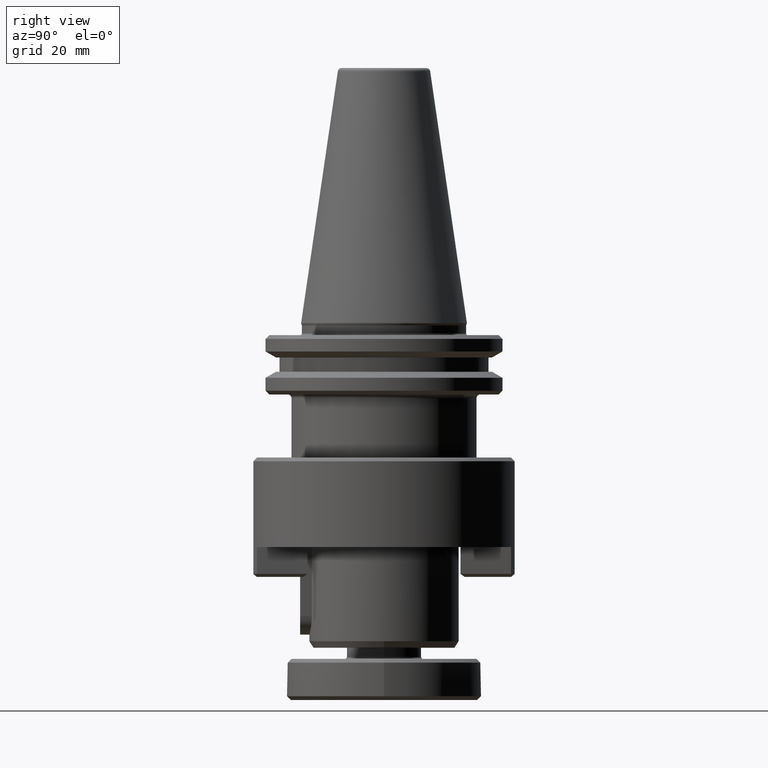
[diagram: clean part render]
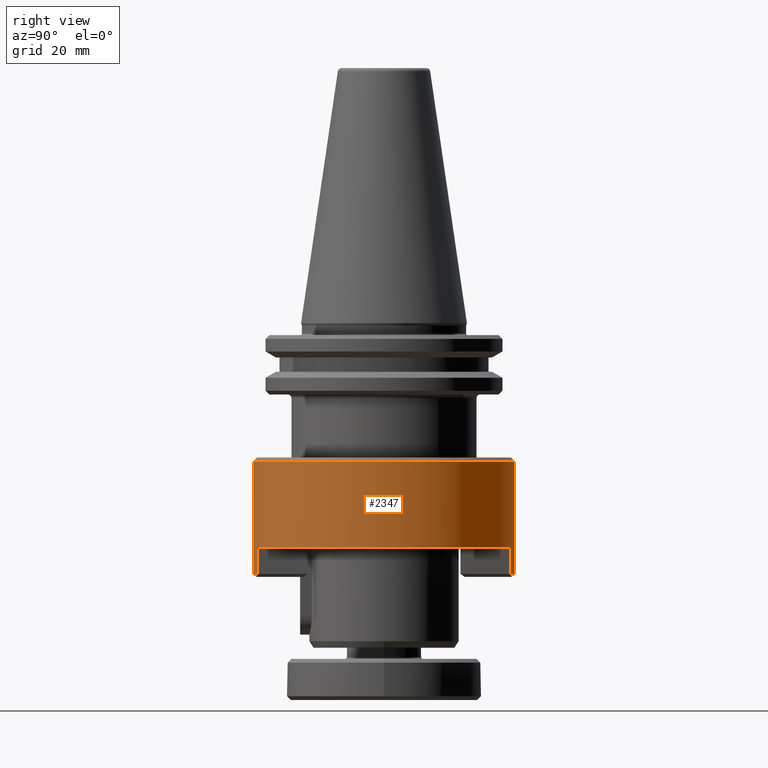
[diagram: same view with one face highlighted and labeled with its STEP entity id]
A machine part, right view. The second image highlights one B-rep face of the part: STEP entity #2347.
In plain terms, the highlighted cylindrical surface (partial cylindrical patch) has radius 35 mm, axis along (0, 0, 1).
Its self-contained STEP definition (entity closure, byte-faithful):
#25 = DIRECTION ( 'NONE',  ( 0.0000000000000000000, 2.478176394252581700E-017, 1.000000000000000000 ) ) ;
#48 = VERTEX_POINT ( 'NONE', #949 ) ;
#84 = VERTEX_POINT ( 'NONE', #2043 ) ;
#95 = CARTESIAN_POINT ( 'NONE',  ( 0.0000000000000000000, 35.00000000000000000, -67.20000000000000300 ) ) ;
#115 = AXIS2_PLACEMENT_3D ( 'NONE', #1092, #1090, #1087 ) ;
#160 = AXIS2_PLACEMENT_3D ( 'NONE', #1281, #1267, #1265 ) ;
#186 = CIRCLE ( 'NONE', #160, 35.00000000000000000 ) ;
#215 = AXIS2_PLACEMENT_3D ( 'NONE', #1754, #1706, #1704 ) ;
#240 = CIRCLE ( 'NONE', #923, 35.00000000000000000 ) ;
#283 = CIRCLE ( 'NONE', #115, 35.00000000000000000 ) ;
#345 = DIRECTION ( 'NONE',  ( 0.0000000000000000000, -1.000000000000000000, 0.0000000000000000000 ) ) ;
#349 = CYLINDRICAL_SURFACE ( 'NONE', #215, 35.00000000000000000 ) ;
#439 = FACE_OUTER_BOUND ( 'NONE', #1709, .T. ) ;
#452 = VERTEX_POINT ( 'NONE', #1631 ) ;
#462 = DIRECTION ( 'NONE',  ( -0.0000000000000000000, 6.500853926474174700E-029, 1.000000000000000000 ) ) ;
#472 = CARTESIAN_POINT ( 'NONE',  ( 0.0000000000000000000, -6.913615421504630400E-027, -36.99999999998274100 ) ) ;
#505 = EDGE_CURVE ( 'NONE', #452, #2433, #865, .T. ) ;
#590 = VECTOR ( 'NONE', #2186, 1000.000000000000000 ) ;
#591 = LINE ( 'NONE', #2182, #590 ) ;
#684 = VECTOR ( 'NONE', #2268, 1000.000000000000000 ) ;
#690 = LINE ( 'NONE', #2261, #684 ) ;
#710 = DIRECTION ( 'NONE',  ( 0.0000000000000000000, 1.000000000000000000, 0.0000000000000000000 ) ) ;
#720 = DIRECTION ( 'NONE',  ( 0.0000000000000000000, 2.478176394252581700E-017, 1.000000000000000000 ) ) ;
#864 = ORIENTED_EDGE ( 'NONE', *, *, #1612, .F. ) ;
#865 = CIRCLE ( 'NONE', #1139, 35.00000000000000000 ) ;
#923 = AXIS2_PLACEMENT_3D ( 'NONE', #472, #462, #345 ) ;
#949 = CARTESIAN_POINT ( 'NONE',  ( 4.286263797015736500E-015, -35.00000000000000000, -36.99999999998274100 ) ) ;
#962 = ORIENTED_EDGE ( 'NONE', *, *, #505, .T. ) ;
#1081 = ORIENTED_EDGE ( 'NONE', *, *, #2552, .T. ) ;
#1087 = DIRECTION ( 'NONE',  ( 0.0000000000000000000, 1.000000000000000000, 0.0000000000000000000 ) ) ;
#1090 = DIRECTION ( 'NONE',  ( 0.0000000000000000000, 2.478176394252581700E-017, 1.000000000000000000 ) ) ;
#1092 = CARTESIAN_POINT ( 'NONE',  ( 0.0000000000000000000, 1.784287004704438200E-016, -59.99999999660000300 ) ) ;
#1097 = EDGE_CURVE ( 'NONE', #48, #84, #240, .T. ) ;
#1130 = ORIENTED_EDGE ( 'NONE', *, *, #2072, .T. ) ;
#1139 = AXIS2_PLACEMENT_3D ( 'NONE', #2135, #720, #710 ) ;
#1183 = ORIENTED_EDGE ( 'NONE', *, *, #1599, .T. ) ;
#1265 = DIRECTION ( 'NONE',  ( 0.0000000000000000000, 1.000000000000000000, 0.0000000000000000000 ) ) ;
#1267 = DIRECTION ( 'NONE',  ( 0.0000000000000000000, 2.478176394252581700E-017, 1.000000000000000000 ) ) ;
#1281 = CARTESIAN_POINT ( 'NONE',  ( 0.0000000000000000000, 2.149475384360753800E-032, -67.20000000000000300 ) ) ;
#1321 = VERTEX_POINT ( 'NONE', #2307 ) ;
#1448 = CARTESIAN_POINT ( 'NONE',  ( 0.0000000000000000000, 35.00000000000000000, -67.20000000090742300 ) ) ;
#1574 = ORIENTED_EDGE ( 'NONE', *, *, #1097, .F. ) ;
#1599 = EDGE_CURVE ( 'NONE', #2433, #84, #1856, .T. ) ;
#1612 = EDGE_CURVE ( 'NONE', #1877, #48, #1816, .T. ) ;
#1630 = ORIENTED_EDGE ( 'NONE', *, *, #2487, .T. ) ;
#1631 = CARTESIAN_POINT ( 'NONE',  ( 8.000000000403185000, 34.07345007469356100, -67.20000000046677300 ) ) ;
#1636 = ORIENTED_EDGE ( 'NONE', *, *, #2002, .T. ) ;
#1704 = DIRECTION ( 'NONE',  ( 0.0000000000000000000, 1.000000000000000000, 0.0000000000000000000 ) ) ;
#1706 = DIRECTION ( 'NONE',  ( 0.0000000000000000000, 2.478176394252581700E-017, 1.000000000000000000 ) ) ;
#1709 = EDGE_LOOP ( 'NONE', ( #864, #1630, #1636, #1081, #1130, #962, #1183, #1574 ) ) ;
#1754 = CARTESIAN_POINT ( 'NONE',  ( 0.0000000000000000000, 0.0000000000000000000, -67.20000000000000300 ) ) ;
#1774 = VERTEX_POINT ( 'NONE', #1880 ) ;
#1816 = LINE ( 'NONE', #2516, #2021 ) ;
#1820 = VECTOR ( 'NONE', #25, 1000.000000000000000 ) ;
#1856 = LINE ( 'NONE', #95, #1820 ) ;
#1877 = VERTEX_POINT ( 'NONE', #2499 ) ;
#1880 = CARTESIAN_POINT ( 'NONE',  ( 7.999999999500417400, -34.07345007447597100, -67.20000000043123100 ) ) ;
#2002 = EDGE_CURVE ( 'NONE', #1774, #2128, #690, .T. ) ;
#2021 = VECTOR ( 'NONE', #2508, 1000.000000000000000 ) ;
#2043 = CARTESIAN_POINT ( 'NONE',  ( 0.0000000000000000000, 35.00000000000000000, -36.99999999998274100 ) ) ;
#2072 = EDGE_CURVE ( 'NONE', #1321, #452, #591, .T. ) ;
#2103 = CARTESIAN_POINT ( 'NONE',  ( 7.999999999232652000, -34.07345007499994700, -59.99999999829999800 ) ) ;
#2128 = VERTEX_POINT ( 'NONE', #2103 ) ;
#2135 = CARTESIAN_POINT ( 'NONE',  ( 0.0000000000000000000, -2.248761858742512300E-026, -67.20000000090742300 ) ) ;
#2182 = CARTESIAN_POINT ( 'NONE',  ( 8.000000000883588300, 34.07345007459419200, -67.20000000000000300 ) ) ;
#2186 = DIRECTION ( 'NONE',  ( -0.0000000000000000000, -2.478176394252581700E-017, -1.000000000000000000 ) ) ;
#2261 = CARTESIAN_POINT ( 'NONE',  ( 7.999999999000835700, -34.07345007503623400, -67.20000000000000300 ) ) ;
#2268 = DIRECTION ( 'NONE',  ( 0.0000000000000000000, 2.478176394252581700E-017, 1.000000000000000000 ) ) ;
#2307 = CARTESIAN_POINT ( 'NONE',  ( 8.000000000220897100, 34.07345007469791700, -59.99999999829999800 ) ) ;
#2347 = ADVANCED_FACE ( 'NONE', ( #439 ), #349, .T. ) ;
#2433 = VERTEX_POINT ( 'NONE', #1448 ) ;
#2487 = EDGE_CURVE ( 'NONE', #1877, #1774, #186, .T. ) ;
#2499 = CARTESIAN_POINT ( 'NONE',  ( -4.286263797015736500E-015, -35.00000000000000000, -67.20000000000000300 ) ) ;
#2508 = DIRECTION ( 'NONE',  ( 0.0000000000000000000, 2.478176394252581700E-017, 1.000000000000000000 ) ) ;
#2516 = CARTESIAN_POINT ( 'NONE',  ( -4.286263797015736500E-015, -35.00000000000000000, -67.20000000000000300 ) ) ;
#2552 = EDGE_CURVE ( 'NONE', #2128, #1321, #283, .T. ) ;